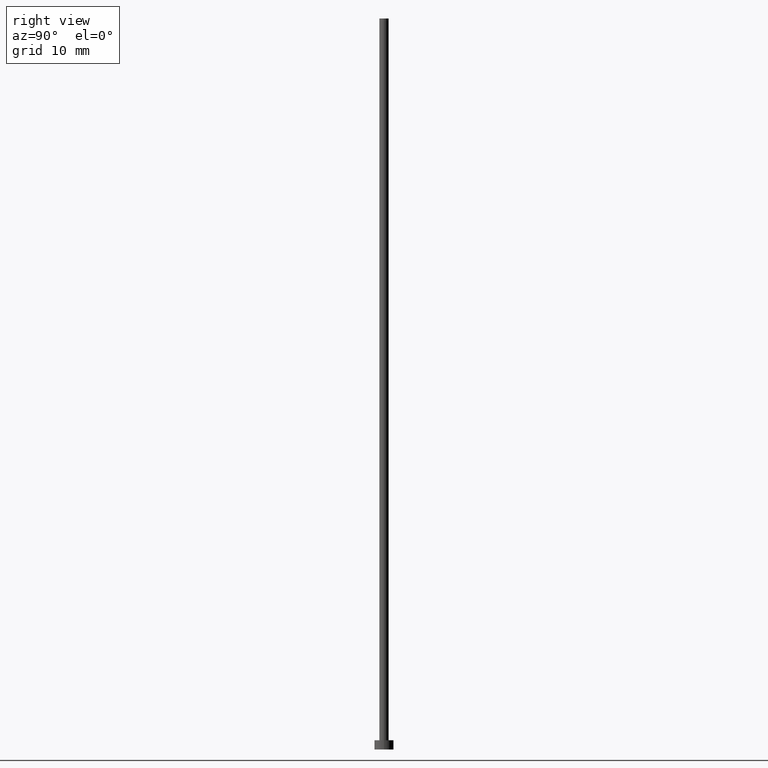
[diagram: clean part render]
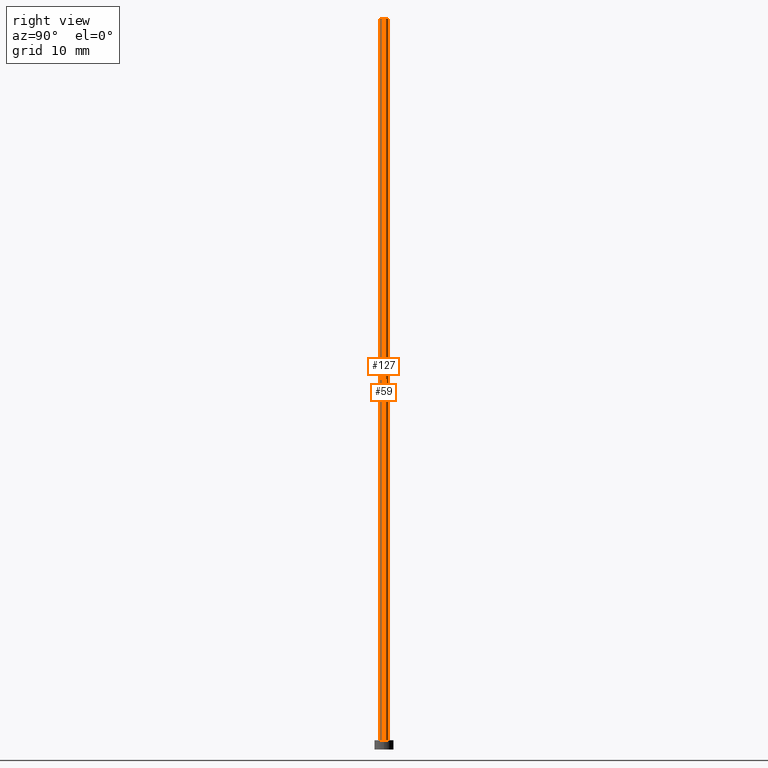
[diagram: same view with one multi-face feature highlighted, each face labeled with its STEP entity id]
A machine part, right view. The highlighted faces form ONE feature: a constant-radius fillet chain: 2 tangent blend faces with common blend radius 0.6 mm. The faces share edges in the B-rep.
Their STEP definitions:
[1] entity #59 (Cylinder):
#3 = CARTESIAN_POINT ( 'NONE',  ( -0.5999999999999999778, 0.000000000000000000, 95.00000000000000000 ) ) ;
#5 = AXIS2_PLACEMENT_3D ( 'NONE', #234, #158, #54 ) ;
#30 = CIRCLE ( 'NONE', #110, 0.5999999999999999778 ) ;
#34 = VERTEX_POINT ( 'NONE', #229 ) ;
#38 = EDGE_LOOP ( 'NONE', ( #134, #207, #173, #175 ) ) ;
#43 = CARTESIAN_POINT ( 'NONE',  ( 0.5999999999999999778, 7.347880794884117764E-17, 95.00000000000000000 ) ) ;
#44 = CARTESIAN_POINT ( 'NONE',  ( 0.000000000000000000, 0.000000000000000000, 95.00000000000000000 ) ) ;
#45 = EDGE_CURVE ( 'NONE', #252, #226, #147, .T. ) ;
#54 = DIRECTION ( 'NONE',  ( 1.000000000000000000, 0.000000000000000000, 0.000000000000000000 ) ) ;
#57 = VERTEX_POINT ( 'NONE', #248 ) ;
#59 = ADVANCED_FACE ( 'NONE', ( #124 ), #251, .T. ) ;
#64 = DIRECTION ( 'NONE',  ( 1.000000000000000000, 0.000000000000000000, 0.000000000000000000 ) ) ;
#90 = CARTESIAN_POINT ( 'NONE',  ( 0.5999999999999999778, 7.347880794884117764E-17, 95.00000000000000000 ) ) ;
#110 = AXIS2_PLACEMENT_3D ( 'NONE', #161, #163, #64 ) ;
#120 = EDGE_CURVE ( 'NONE', #226, #57, #30, .T. ) ;
#121 = DIRECTION ( 'NONE',  ( -0.000000000000000000, -0.000000000000000000, -1.000000000000000000 ) ) ;
#124 = FACE_OUTER_BOUND ( 'NONE', #38, .T. ) ;
#126 = LINE ( 'NONE', #3, #208 ) ;
#134 = ORIENTED_EDGE ( 'NONE', *, *, #225, .F. ) ;
#138 = CARTESIAN_POINT ( 'NONE',  ( 0.5999999999999999778, 7.347880794884117764E-17, 1.199999999999999956 ) ) ;
#147 = LINE ( 'NONE', #43, #197 ) ;
#158 = DIRECTION ( 'NONE',  ( 0.000000000000000000, 0.000000000000000000, 1.000000000000000000 ) ) ;
#161 = CARTESIAN_POINT ( 'NONE',  ( 0.000000000000000000, 0.000000000000000000, 1.199999999999999956 ) ) ;
#163 = DIRECTION ( 'NONE',  ( 0.000000000000000000, 0.000000000000000000, 1.000000000000000000 ) ) ;
#169 = DIRECTION ( 'NONE',  ( -0.000000000000000000, -0.000000000000000000, -1.000000000000000000 ) ) ;
#173 = ORIENTED_EDGE ( 'NONE', *, *, #120, .T. ) ;
#175 = ORIENTED_EDGE ( 'NONE', *, *, #205, .F. ) ;
#197 = VECTOR ( 'NONE', #214, 1000.000000000000000 ) ;
#205 = EDGE_CURVE ( 'NONE', #34, #57, #126, .T. ) ;
#207 = ORIENTED_EDGE ( 'NONE', *, *, #45, .T. ) ;
#208 = VECTOR ( 'NONE', #169, 1000.000000000000000 ) ;
#214 = DIRECTION ( 'NONE',  ( -0.000000000000000000, -0.000000000000000000, -1.000000000000000000 ) ) ;
#217 = AXIS2_PLACEMENT_3D ( 'NONE', #44, #121, #232 ) ;
#225 = EDGE_CURVE ( 'NONE', #252, #34, #239, .T. ) ;
#226 = VERTEX_POINT ( 'NONE', #138 ) ;
#229 = CARTESIAN_POINT ( 'NONE',  ( -0.5999999999999999778, 0.000000000000000000, 95.00000000000000000 ) ) ;
#232 = DIRECTION ( 'NONE',  ( -1.000000000000000000, 0.000000000000000000, 0.000000000000000000 ) ) ;
#234 = CARTESIAN_POINT ( 'NONE',  ( 0.000000000000000000, 0.000000000000000000, 95.00000000000000000 ) ) ;
#239 = CIRCLE ( 'NONE', #5, 0.5999999999999999778 ) ;
#248 = CARTESIAN_POINT ( 'NONE',  ( -0.5999999999999999778, 0.000000000000000000, 1.199999999999999956 ) ) ;
#251 = CYLINDRICAL_SURFACE ( 'NONE', #217, 0.5999999999999999778 ) ;
#252 = VERTEX_POINT ( 'NONE', #90 ) ;
[2] entity #127 (Cylinder):
#3 = CARTESIAN_POINT ( 'NONE',  ( -0.5999999999999999778, 0.000000000000000000, 95.00000000000000000 ) ) ;
#16 = ORIENTED_EDGE ( 'NONE', *, *, #45, .F. ) ;
#18 = CIRCLE ( 'NONE', #171, 0.5999999999999999778 ) ;
#27 = CARTESIAN_POINT ( 'NONE',  ( 0.000000000000000000, 0.000000000000000000, 1.199999999999999956 ) ) ;
#28 = DIRECTION ( 'NONE',  ( 1.000000000000000000, 0.000000000000000000, 0.000000000000000000 ) ) ;
#32 = ORIENTED_EDGE ( 'NONE', *, *, #205, .T. ) ;
#34 = VERTEX_POINT ( 'NONE', #229 ) ;
#43 = CARTESIAN_POINT ( 'NONE',  ( 0.5999999999999999778, 7.347880794884117764E-17, 95.00000000000000000 ) ) ;
#45 = EDGE_CURVE ( 'NONE', #252, #226, #147, .T. ) ;
#57 = VERTEX_POINT ( 'NONE', #248 ) ;
#78 = ORIENTED_EDGE ( 'NONE', *, *, #242, .T. ) ;
#90 = CARTESIAN_POINT ( 'NONE',  ( 0.5999999999999999778, 7.347880794884117764E-17, 95.00000000000000000 ) ) ;
#95 = DIRECTION ( 'NONE',  ( -0.000000000000000000, -0.000000000000000000, -1.000000000000000000 ) ) ;
#126 = LINE ( 'NONE', #3, #208 ) ;
#127 = ADVANCED_FACE ( 'NONE', ( #216 ), #172, .T. ) ;
#130 = DIRECTION ( 'NONE',  ( -1.000000000000000000, 0.000000000000000000, 0.000000000000000000 ) ) ;
#133 = DIRECTION ( 'NONE',  ( 0.000000000000000000, 0.000000000000000000, 1.000000000000000000 ) ) ;
#138 = CARTESIAN_POINT ( 'NONE',  ( 0.5999999999999999778, 7.347880794884117764E-17, 1.199999999999999956 ) ) ;
#144 = AXIS2_PLACEMENT_3D ( 'NONE', #219, #95, #130 ) ;
#147 = LINE ( 'NONE', #43, #197 ) ;
#168 = DIRECTION ( 'NONE',  ( 0.000000000000000000, 0.000000000000000000, 1.000000000000000000 ) ) ;
#169 = DIRECTION ( 'NONE',  ( -0.000000000000000000, -0.000000000000000000, -1.000000000000000000 ) ) ;
#171 = AXIS2_PLACEMENT_3D ( 'NONE', #27, #168, #233 ) ;
#172 = CYLINDRICAL_SURFACE ( 'NONE', #144, 0.5999999999999999778 ) ;
#176 = EDGE_CURVE ( 'NONE', #34, #252, #255, .T. ) ;
#190 = AXIS2_PLACEMENT_3D ( 'NONE', #220, #133, #28 ) ;
#197 = VECTOR ( 'NONE', #214, 1000.000000000000000 ) ;
#205 = EDGE_CURVE ( 'NONE', #34, #57, #126, .T. ) ;
#208 = VECTOR ( 'NONE', #169, 1000.000000000000000 ) ;
#214 = DIRECTION ( 'NONE',  ( -0.000000000000000000, -0.000000000000000000, -1.000000000000000000 ) ) ;
#216 = FACE_OUTER_BOUND ( 'NONE', #238, .T. ) ;
#219 = CARTESIAN_POINT ( 'NONE',  ( 0.000000000000000000, 0.000000000000000000, 95.00000000000000000 ) ) ;
#220 = CARTESIAN_POINT ( 'NONE',  ( 0.000000000000000000, 0.000000000000000000, 95.00000000000000000 ) ) ;
#226 = VERTEX_POINT ( 'NONE', #138 ) ;
#229 = CARTESIAN_POINT ( 'NONE',  ( -0.5999999999999999778, 0.000000000000000000, 95.00000000000000000 ) ) ;
#233 = DIRECTION ( 'NONE',  ( 1.000000000000000000, 0.000000000000000000, 0.000000000000000000 ) ) ;
#238 = EDGE_LOOP ( 'NONE', ( #16, #241, #32, #78 ) ) ;
#241 = ORIENTED_EDGE ( 'NONE', *, *, #176, .F. ) ;
#242 = EDGE_CURVE ( 'NONE', #57, #226, #18, .T. ) ;
#248 = CARTESIAN_POINT ( 'NONE',  ( -0.5999999999999999778, 0.000000000000000000, 1.199999999999999956 ) ) ;
#252 = VERTEX_POINT ( 'NONE', #90 ) ;
#255 = CIRCLE ( 'NONE', #190, 0.5999999999999999778 ) ;